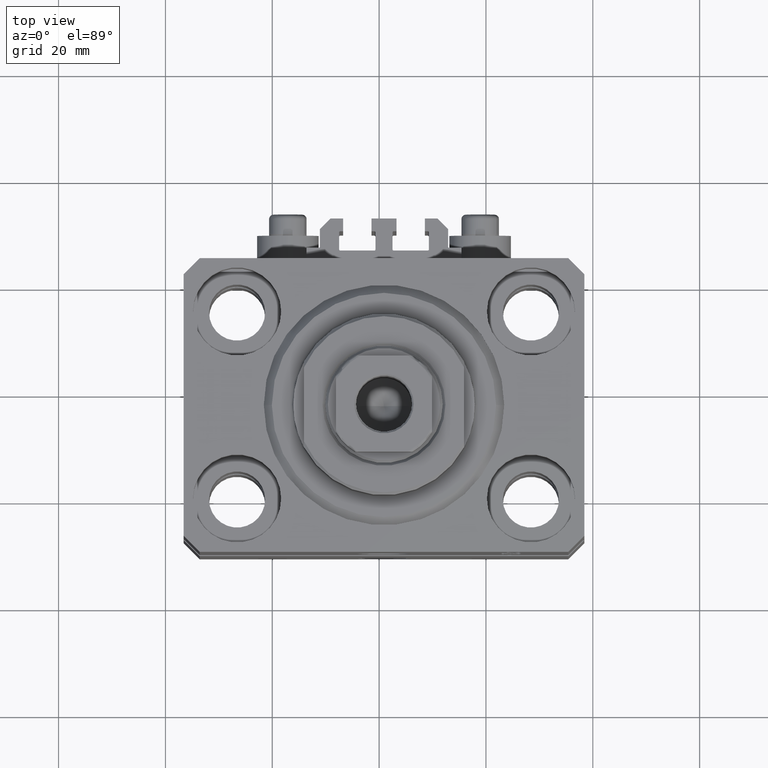
[diagram: clean part render]
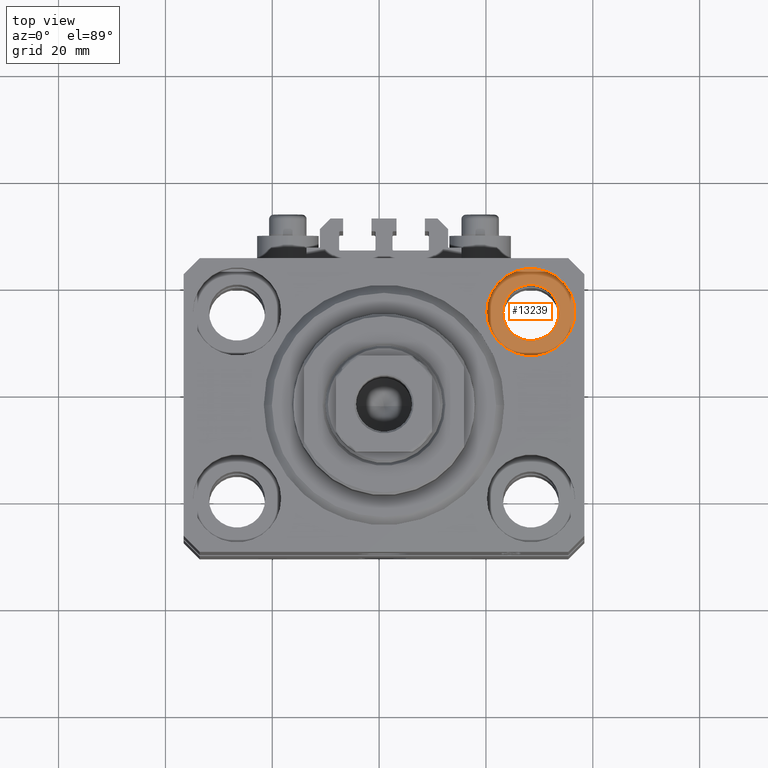
[diagram: same view with one face highlighted and labeled with its STEP entity id]
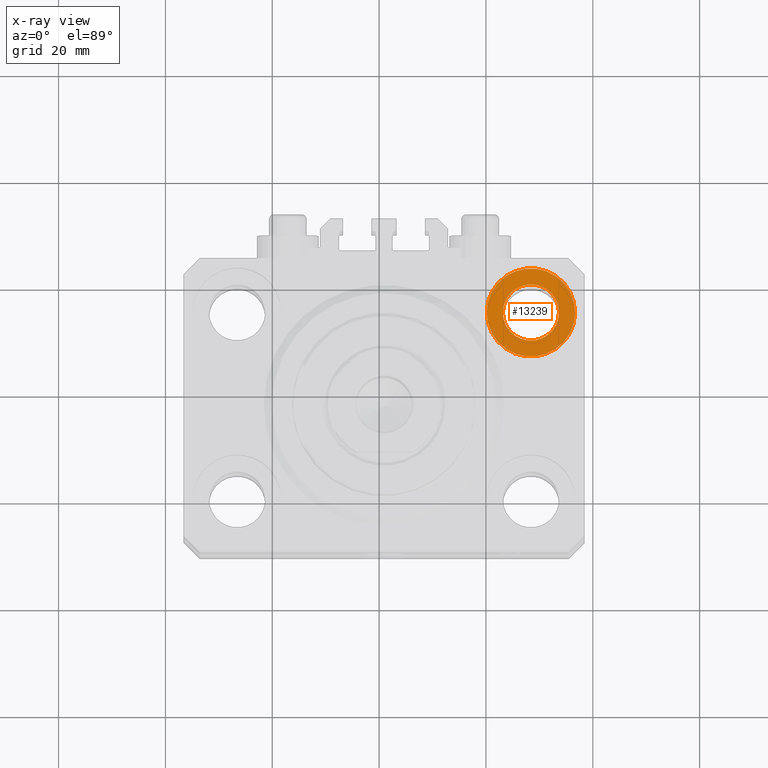
[diagram: x-ray of the same camera — body ghosted, the highlighted face saturated]
A machine part, top view. The second image highlights one B-rep face of the part: STEP entity #13239.
The next image is the same camera in x-ray: the body ghosted, the highlighted face saturated — about 0% of this face is hidden behind the body in this view.
In plain terms, the highlighted planar face has unit normal (0, 0, 1).
Its self-contained STEP definition (entity closure, byte-faithful):
#452 = ORIENTED_EDGE ( 'NONE', *, *, #13665, .T. ) ;
#1989 = DIRECTION ( 'NONE',  ( 1.000000000000000000, 0.000000000000000000, -0.000000000000000000 ) ) ;
#1995 = CARTESIAN_POINT ( 'NONE',  ( 27.49999999999999645, 17.50000000000001066, -11.00000000000000000 ) ) ;
#2898 = DIRECTION ( 'NONE',  ( 0.000000000000000000, 0.000000000000000000, 1.000000000000000000 ) ) ;
#5033 = CIRCLE ( 'NONE', #41330, 8.249999999999992895 ) ;
#5404 = CARTESIAN_POINT ( 'NONE',  ( 27.49999999999999645, 17.50000000000001066, -11.00000000000000000 ) ) ;
#5639 = DIRECTION ( 'NONE',  ( 1.000000000000000000, 0.000000000000000000, 0.000000000000000000 ) ) ;
#6019 = CIRCLE ( 'NONE', #12841, 5.249999999999997335 ) ;
#8273 = EDGE_LOOP ( 'NONE', ( #452, #16632 ) ) ;
#9107 = DIRECTION ( 'NONE',  ( 1.000000000000000000, 0.000000000000000000, 0.000000000000000000 ) ) ;
#10341 = CARTESIAN_POINT ( 'NONE',  ( 19.25000000000000000, 17.50000000000001066, -11.00000000000000000 ) ) ;
#10864 = CARTESIAN_POINT ( 'NONE',  ( 32.74999999999999289, 17.50000000000001066, -11.00000000000000000 ) ) ;
#12510 = DIRECTION ( 'NONE',  ( 0.000000000000000000, 0.000000000000000000, 1.000000000000000000 ) ) ;
#12841 = AXIS2_PLACEMENT_3D ( 'NONE', #5404, #12510, #5639 ) ;
#13239 = ADVANCED_FACE ( 'NONE', ( #30879, #31112 ), #16891, .T. ) ;
#13665 = EDGE_CURVE ( 'NONE', #22422, #35569, #5033, .T. ) ;
#13765 = ORIENTED_EDGE ( 'NONE', *, *, #27271, .F. ) ;
#16632 = ORIENTED_EDGE ( 'NONE', *, *, #45115, .T. ) ;
#16891 = PLANE ( 'NONE',  #30769 ) ;
#16898 = CARTESIAN_POINT ( 'NONE',  ( 27.49999999999999645, 17.50000000000001066, -11.00000000000000000 ) ) ;
#17097 = AXIS2_PLACEMENT_3D ( 'NONE', #16898, #45549, #31577 ) ;
#18641 = CIRCLE ( 'NONE', #17097, 8.249999999999992895 ) ;
#22422 = VERTEX_POINT ( 'NONE', #28964 ) ;
#23228 = ORIENTED_EDGE ( 'NONE', *, *, #23919, .F. ) ;
#23828 = VERTEX_POINT ( 'NONE', #10864 ) ;
#23919 = EDGE_CURVE ( 'NONE', #43421, #23828, #6019, .T. ) ;
#25814 = DIRECTION ( 'NONE',  ( 1.000000000000000000, 0.000000000000000000, 0.000000000000000000 ) ) ;
#27271 = EDGE_CURVE ( 'NONE', #23828, #43421, #30304, .T. ) ;
#28491 = CARTESIAN_POINT ( 'NONE',  ( 22.25000000000000000, 17.50000000000001066, -11.00000000000000000 ) ) ;
#28964 = CARTESIAN_POINT ( 'NONE',  ( 35.74999999999999289, 17.50000000000001066, -11.00000000000000000 ) ) ;
#30179 = DIRECTION ( 'NONE',  ( 0.000000000000000000, 0.000000000000000000, 1.000000000000000000 ) ) ;
#30304 = CIRCLE ( 'NONE', #33352, 5.249999999999997335 ) ;
#30769 = AXIS2_PLACEMENT_3D ( 'NONE', #34661, #2898, #1989 ) ;
#30879 = FACE_BOUND ( 'NONE', #43062, .T. ) ;
#31112 = FACE_OUTER_BOUND ( 'NONE', #8273, .T. ) ;
#31577 = DIRECTION ( 'NONE',  ( 1.000000000000000000, 0.000000000000000000, 0.000000000000000000 ) ) ;
#33352 = AXIS2_PLACEMENT_3D ( 'NONE', #1995, #30179, #9107 ) ;
#34661 = CARTESIAN_POINT ( 'NONE',  ( 27.49999999999999645, 17.50000000000001066, -11.00000000000000000 ) ) ;
#35569 = VERTEX_POINT ( 'NONE', #10341 ) ;
#37393 = DIRECTION ( 'NONE',  ( 0.000000000000000000, 0.000000000000000000, 1.000000000000000000 ) ) ;
#37630 = CARTESIAN_POINT ( 'NONE',  ( 27.49999999999999645, 17.50000000000001066, -11.00000000000000000 ) ) ;
#41330 = AXIS2_PLACEMENT_3D ( 'NONE', #37630, #37393, #25814 ) ;
#43062 = EDGE_LOOP ( 'NONE', ( #13765, #23228 ) ) ;
#43421 = VERTEX_POINT ( 'NONE', #28491 ) ;
#45115 = EDGE_CURVE ( 'NONE', #35569, #22422, #18641, .T. ) ;
#45549 = DIRECTION ( 'NONE',  ( 0.000000000000000000, 0.000000000000000000, 1.000000000000000000 ) ) ;